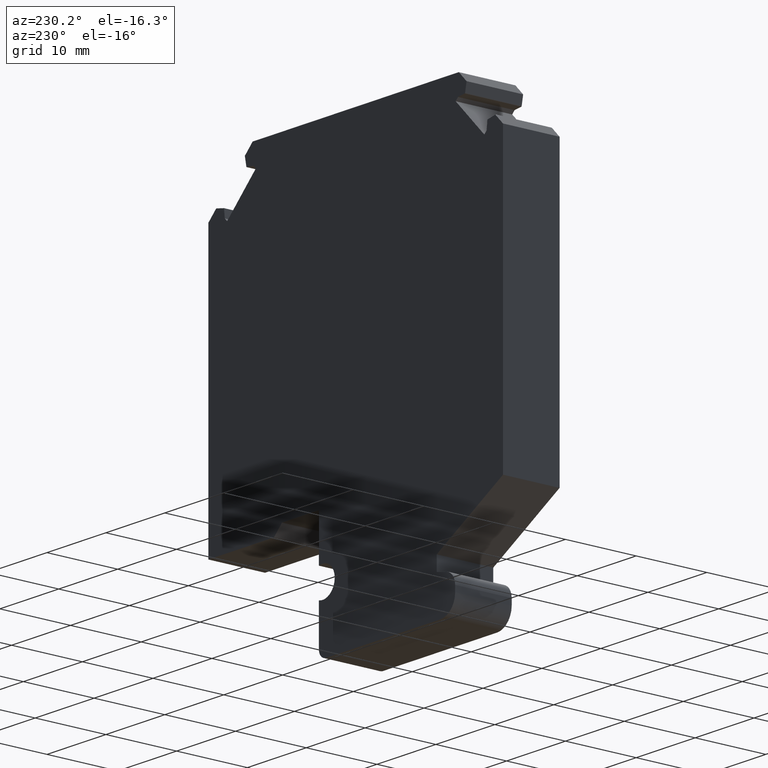
[diagram: clean part render]
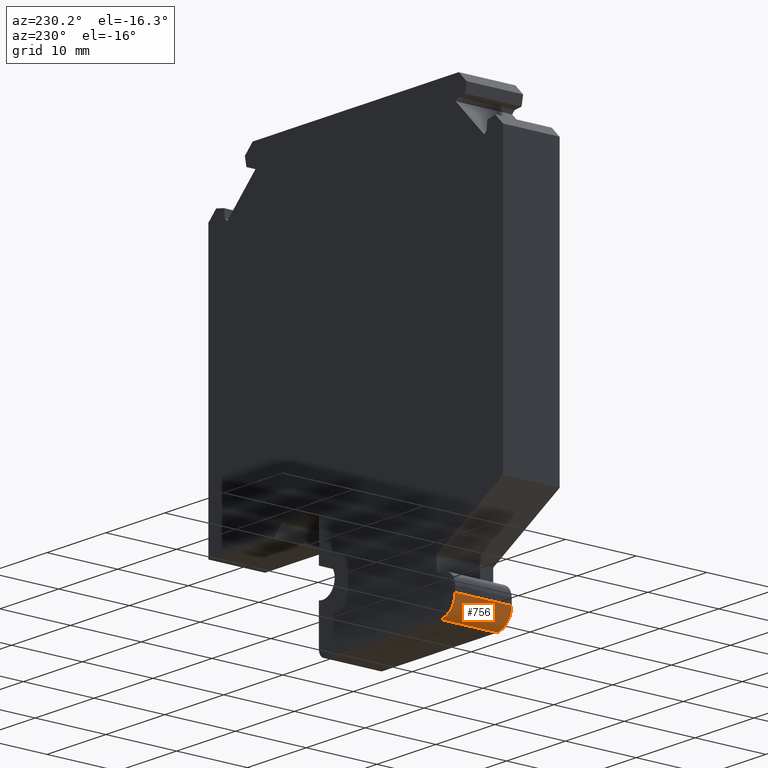
[diagram: same view with one face highlighted and labeled with its STEP entity id]
A machine part, auxiliary view. The second image highlights one B-rep face of the part: STEP entity #756.
In plain terms, the highlighted cylindrical surface (edge-blend (fillet) strip) has radius 2.5 mm, axis along (0, -1, 0).
Its self-contained STEP definition (entity closure, byte-faithful):
#24=CIRCLE('',#812,2.49999999999994);
#25=CIRCLE('',#813,2.49999999999994);
#32=CYLINDRICAL_SURFACE('',#811,2.49999999999994);
#115=ORIENTED_EDGE('',*,*,#312,.T.);
#116=ORIENTED_EDGE('',*,*,#313,.F.);
#117=ORIENTED_EDGE('',*,*,#314,.F.);
#118=ORIENTED_EDGE('',*,*,#310,.T.);
#310=EDGE_CURVE('',#400,#399,#486,.T.);
#312=EDGE_CURVE('',#399,#401,#24,.T.);
#313=EDGE_CURVE('',#402,#401,#488,.T.);
#314=EDGE_CURVE('',#400,#402,#25,.T.);
#399=VERTEX_POINT('',#1151);
#400=VERTEX_POINT('',#1153);
#401=VERTEX_POINT('',#1157);
#402=VERTEX_POINT('',#1159);
#486=LINE('',#1152,#584);
#488=LINE('',#1158,#586);
#584=VECTOR('',#940,1000.);
#586=VECTOR('',#946,1000.);
#647=EDGE_LOOP('',(#115,#116,#117,#118));
#685=FACE_BOUND('',#647,.T.);
#756=ADVANCED_FACE('',(#685),#32,.T.);
#811=AXIS2_PLACEMENT_3D('',#1155,#942,#943);
#812=AXIS2_PLACEMENT_3D('',#1156,#944,#945);
#813=AXIS2_PLACEMENT_3D('',#1160,#947,#948);
#940=DIRECTION('',(0.,-1.,0.));
#942=DIRECTION('',(0.,-1.,0.));
#943=DIRECTION('',(0.,0.,-1.));
#944=DIRECTION('',(0.,1.,0.));
#945=DIRECTION('',(1.,0.,0.));
#946=DIRECTION('',(0.,-1.,0.));
#947=DIRECTION('',(0.,1.,0.));
#948=DIRECTION('',(1.,0.,0.));
#1151=CARTESIAN_POINT('',(-14.375,0.,-31.6276989731612));
#1152=CARTESIAN_POINT('',(-14.375,8.,-31.6276989731612));
#1153=CARTESIAN_POINT('',(-14.375,8.,-31.6276989731612));
#1155=CARTESIAN_POINT('',(-14.375,8.,-29.1276989731613));
#1156=CARTESIAN_POINT('',(-14.375,0.,-29.1276989731613));
#1157=CARTESIAN_POINT('',(-16.875,0.,-29.1276989731613));
#1158=CARTESIAN_POINT('',(-16.875,8.,-29.1276989731613));
#1159=CARTESIAN_POINT('',(-16.875,8.,-29.1276989731613));
#1160=CARTESIAN_POINT('',(-14.375,8.,-29.1276989731613));